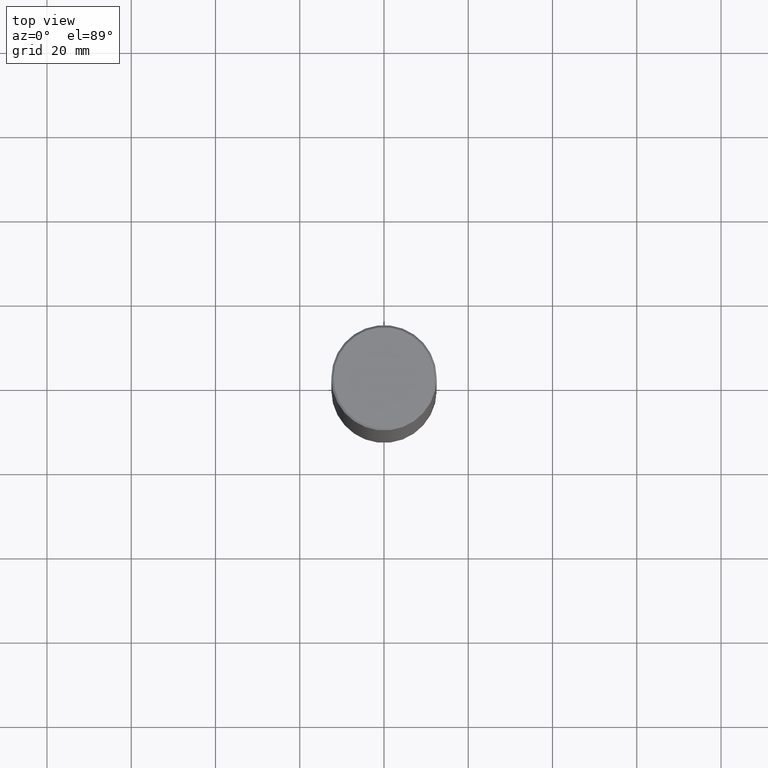
[diagram: clean part render]
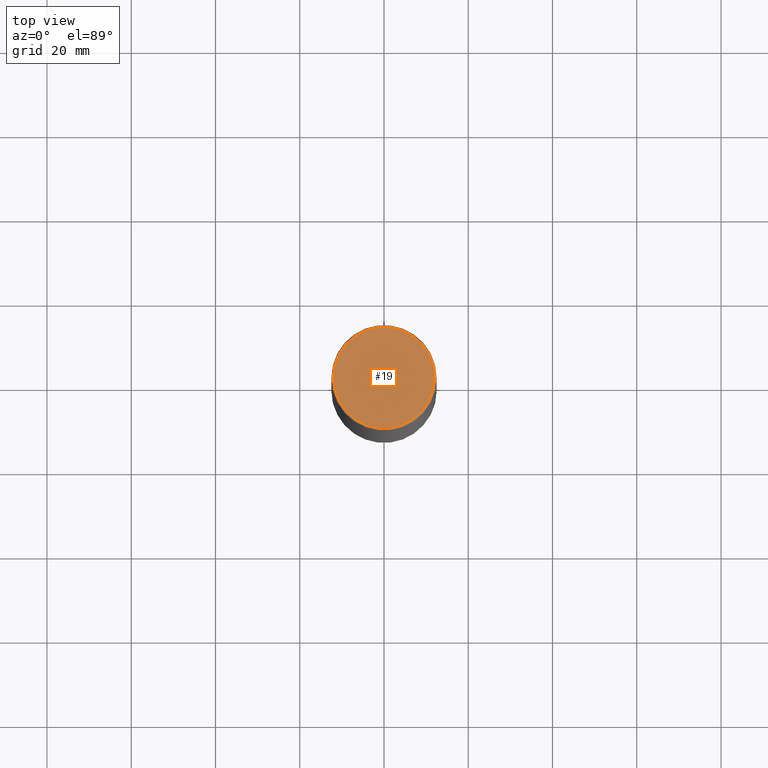
[diagram: same view with one face highlighted and labeled with its STEP entity id]
A machine part, top view. The second image highlights one B-rep face of the part: STEP entity #19.
In plain terms, the highlighted planar face has unit normal (0, -0, -1).
Its self-contained STEP definition (entity closure, byte-faithful):
#6 = VERTEX_POINT ( 'NONE', #141 ) ;
#8 = DIRECTION ( 'NONE',  ( 1.000000000000000000, -6.982962677686265922E-15, 4.876006802227162976E-29 ) ) ;
#19 = ADVANCED_FACE ( 'NONE', ( #137 ), #53, .F. ) ;
#35 = DIRECTION ( 'NONE',  ( -2.445468806185136597E-29, 3.491481338843145583E-15, 1.000000000000000000 ) ) ;
#53 = PLANE ( 'NONE',  #261 ) ;
#72 = VERTEX_POINT ( 'NONE', #241 ) ;
#82 = AXIS2_PLACEMENT_3D ( 'NONE', #236, #238, #324 ) ;
#111 = ORIENTED_EDGE ( 'NONE', *, *, #239, .T. ) ;
#137 = FACE_OUTER_BOUND ( 'NONE', #161, .T. ) ;
#141 = CARTESIAN_POINT ( 'NONE',  ( 0.4721499999999996255, -3.342703923013973396E-15, 8.537024980224040028E-18 ) ) ;
#161 = EDGE_LOOP ( 'NONE', ( #188, #111 ) ) ;
#171 = CARTESIAN_POINT ( 'NONE',  ( -2.087702828670439639E-46, 2.980686340760894400E-32, 8.537024980200822558E-18 ) ) ;
#188 = ORIENTED_EDGE ( 'NONE', *, *, #208, .T. ) ;
#208 = EDGE_CURVE ( 'NONE', #72, #6, #343, .T. ) ;
#221 = CIRCLE ( 'NONE', #82, 0.4721499999999996255 ) ;
#228 = AXIS2_PLACEMENT_3D ( 'NONE', #171, #35, #8 ) ;
#236 = CARTESIAN_POINT ( 'NONE',  ( -2.087702828670439639E-46, 2.980686340760894400E-32, 8.537024980200822558E-18 ) ) ;
#238 = DIRECTION ( 'NONE',  ( -2.445468806185136597E-29, 3.491481338843145583E-15, 1.000000000000000000 ) ) ;
#239 = EDGE_CURVE ( 'NONE', #6, #72, #221, .T. ) ;
#241 = CARTESIAN_POINT ( 'NONE',  ( -0.4721499999999996255, 3.331920641657999252E-15, 8.537024980177643606E-18 ) ) ;
#250 = CARTESIAN_POINT ( 'NONE',  ( 3.297005828269567997E-15, 0.4721499999999996255, -1.644234401644689488E-15 ) ) ;
#261 = AXIS2_PLACEMENT_3D ( 'NONE', #250, #339, #365 ) ;
#324 = DIRECTION ( 'NONE',  ( 1.000000000000000000, -6.982962677686265922E-15, 4.876006802227162976E-29 ) ) ;
#339 = DIRECTION ( 'NONE',  ( 2.438088387897960049E-29, -3.491481338843145188E-15, -1.000000000000000000 ) ) ;
#343 = CIRCLE ( 'NONE', #228, 0.4721499999999996255 ) ;
#365 = DIRECTION ( 'NONE',  ( -1.000000000000000000, 6.982962677686265922E-15, -4.876176775795935793E-29 ) ) ;